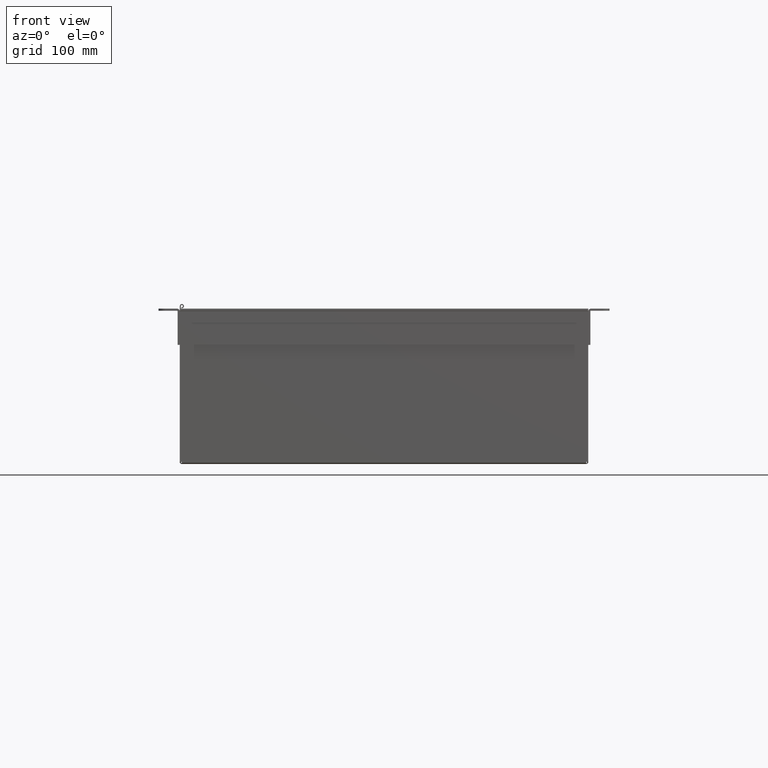
[diagram: clean part render]
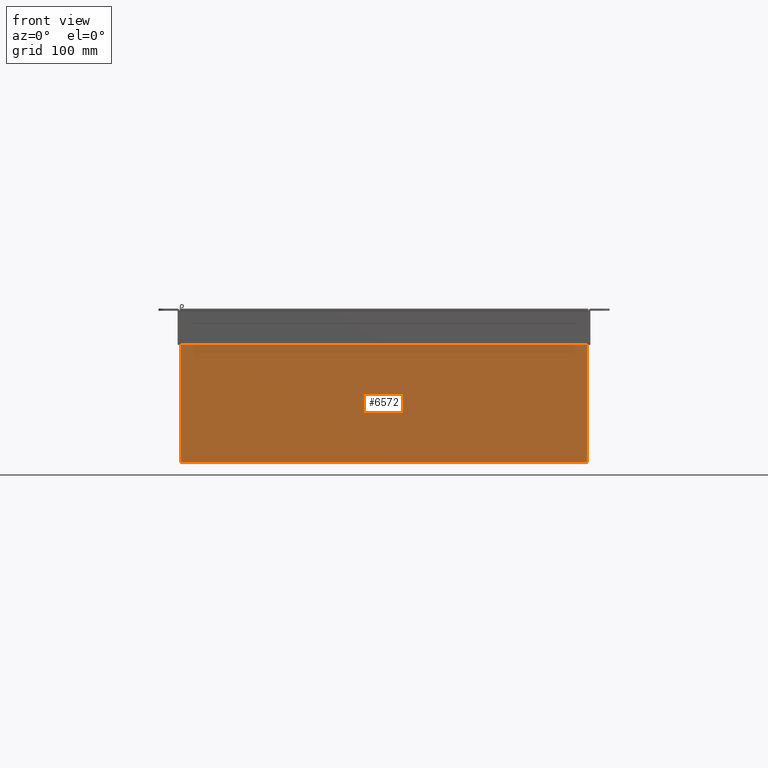
[diagram: same view with one face highlighted and labeled with its STEP entity id]
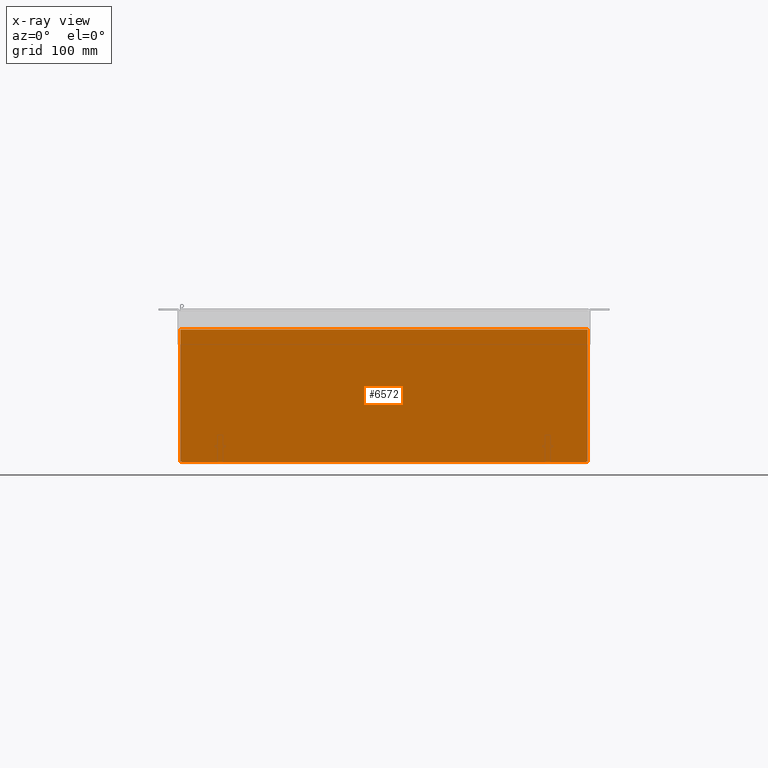
[diagram: x-ray of the same camera — body ghosted, the highlighted face saturated]
A machine part, front view. The second image highlights one B-rep face of the part: STEP entity #6572.
The next image is the same camera in x-ray: the body ghosted, the highlighted face saturated — about 0% of this face is hidden behind the body in this view.
In plain terms, the highlighted planar face has unit normal (-0, 1, 0).
Its self-contained STEP definition (entity closure, byte-faithful):
#170=CIRCLE($,#6992,0.07);
#172=CIRCLE($,#6995,0.07);
#500=PLANE($,#6994);
#794=FACE_OUTER_BOUND($,#1183,.T.);
#1183=EDGE_LOOP($,(#4742,#4743,#4744,#4745,#4746,#4747,#4748,#4749));
#1666=LINE($,#10183,#2294);
#1681=LINE($,#10323,#2309);
#1697=LINE($,#10356,#2325);
#1700=LINE($,#10362,#2328);
#1744=LINE($,#10648,#2372);
#1745=LINE($,#10650,#2373);
#2294=VECTOR($,#7756,23.8299029130882);
#2309=VECTOR($,#7791,0.0480485434557752);
#2325=VECTOR($,#7819,0.048048543455999);
#2328=VECTOR($,#7824,7.76729986440823);
#2372=VECTOR($,#7926,7.76729986440824);
#2373=VECTOR($,#7927,23.7655336786487);
#2882=VERTEX_POINT($,#10159);
#2883=VERTEX_POINT($,#10172);
#2894=VERTEX_POINT($,#10321);
#2905=VERTEX_POINT($,#10355);
#2907=VERTEX_POINT($,#10361);
#2946=VERTEX_POINT($,#10640);
#2947=VERTEX_POINT($,#10642);
#2949=VERTEX_POINT($,#10649);
#3499=EDGE_CURVE($,#2882,#2883,#1666,.T.);
#3521=EDGE_CURVE($,#2883,#2894,#1681,.T.);
#3537=EDGE_CURVE($,#2905,#2882,#1697,.T.);
#3540=EDGE_CURVE($,#2905,#2907,#1700,.T.);
#3601=EDGE_CURVE($,#2947,#2946,#170,.T.);
#3604=EDGE_CURVE($,#2947,#2894,#1744,.T.);
#3605=EDGE_CURVE($,#2946,#2949,#1745,.T.);
#3606=EDGE_CURVE($,#2949,#2907,#172,.T.);
#4742=ORIENTED_EDGE($,*,*,#3537,.T.);
#4743=ORIENTED_EDGE($,*,*,#3499,.T.);
#4744=ORIENTED_EDGE($,*,*,#3521,.T.);
#4745=ORIENTED_EDGE($,*,*,#3604,.F.);
#4746=ORIENTED_EDGE($,*,*,#3601,.T.);
#4747=ORIENTED_EDGE($,*,*,#3605,.T.);
#4748=ORIENTED_EDGE($,*,*,#3606,.T.);
#4749=ORIENTED_EDGE($,*,*,#3540,.F.);
#6572=ADVANCED_FACE($,(#794),#500,.F.);
#6992=AXIS2_PLACEMENT_3D($,#10643,#7919,#7920);
#6994=AXIS2_PLACEMENT_3D($,#10647,#7924,#7925);
#6995=AXIS2_PLACEMENT_3D($,#10651,#7928,#7929);
#7756=DIRECTION($,(-1.,-3.71016135642333E-016,1.16919349055931E-016));
#7791=DIRECTION($,(-1.,-3.71016135642333E-016,1.16919349055931E-016));
#7819=DIRECTION($,(-1.,-3.71016135642333E-016,1.16919349055931E-016));
#7824=DIRECTION($,(5.32470501266848E-030,-4.55977881293912E-014,-1.));
#7919=DIRECTION('center_axis',(-3.71016135642333E-016,1.,5.4302316434075E-015));
#7920=DIRECTION('ref_axis',(1.,1.16558847729675E-016,1.16558847729675E-016));
#7924=DIRECTION('center_axis',(-3.71016135642333E-016,1.,5.4302316434075E-015));
#7925=DIRECTION('ref_axis',(1.,0.,0.));
#7926=DIRECTION($,(6.16297582203915E-031,-5.39030285815812E-015,1.));
#7927=DIRECTION($,(1.,3.71016135642333E-016,1.37160184631476E-030));
#7928=DIRECTION('center_axis',(-3.71016135642333E-016,1.,5.4302316434075E-015));
#7929=DIRECTION('ref_axis',(1.,1.16558847729675E-016,1.16558847729675E-016));
#10159=CARTESIAN_POINT('',(11.914951456544,-15.,7.89475));
#10172=CARTESIAN_POINT('',(-11.9149514565442,-15.,7.89475));
#10183=CARTESIAN_POINT($,(5.9815,-15.,7.89475));
#10321=CARTESIAN_POINT('',(-11.963,-15.,7.89475));
#10323=CARTESIAN_POINT($,(5.9815,-15.,7.89475));
#10355=CARTESIAN_POINT('',(11.963,-15.,7.89475));
#10356=CARTESIAN_POINT($,(5.9815,-15.,7.89475));
#10361=CARTESIAN_POINT('',(11.963,-15.,0.127450135591769));
#10362=CARTESIAN_POINT($,(11.963,-15.,-0.0673176844616893));
#10640=CARTESIAN_POINT('',(-11.8827668393244,-15.,0.105249999999998));
#10642=CARTESIAN_POINT('',(-11.963,-15.,0.127450135591766));
#10643=CARTESIAN_POINT('Origin',(-11.9378919211154,-15.,0.0621080788845757));
#10647=CARTESIAN_POINT('Origin',(-2.02640667979805E-015,-15.,4.00948307888458));
#10648=CARTESIAN_POINT($,(-11.963,-15.,0.105250000000001));
#10649=CARTESIAN_POINT('',(11.8827668393244,-15.,0.105249999999998));
#10650=CARTESIAN_POINT($,(-2.39937345792947E-015,-15.,0.105249999999998));
#10651=CARTESIAN_POINT('Origin',(11.9378919211154,-15.,0.0621080788845757));